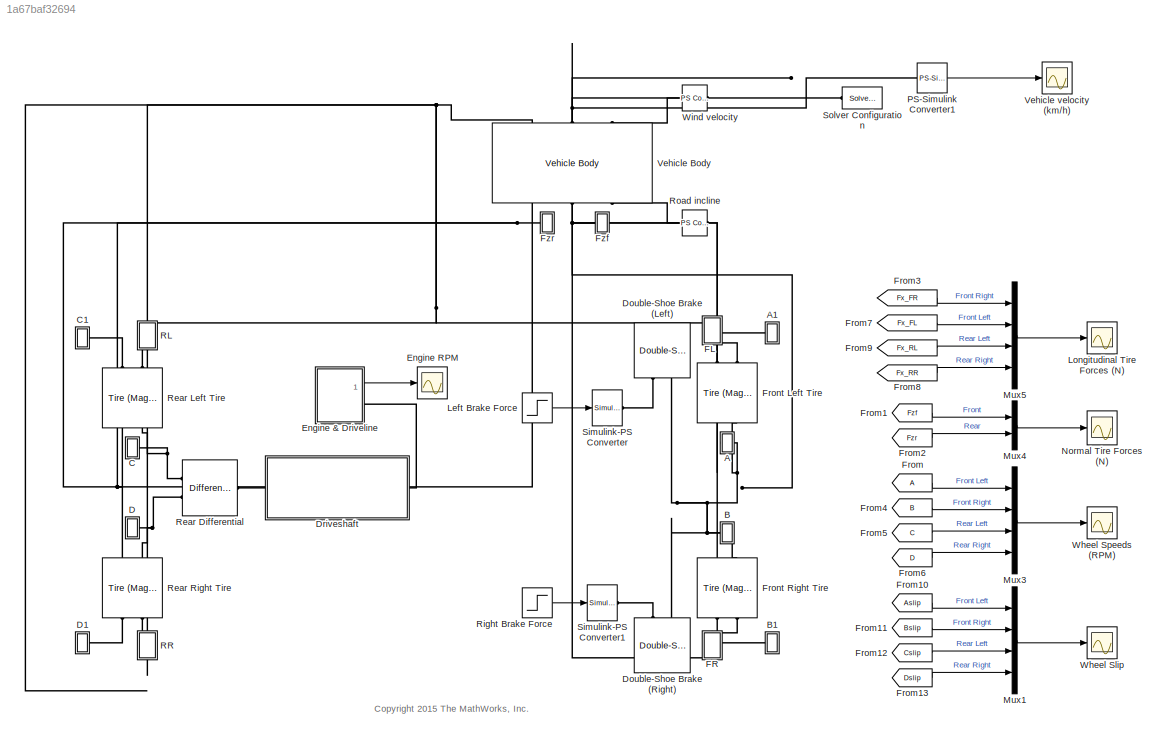
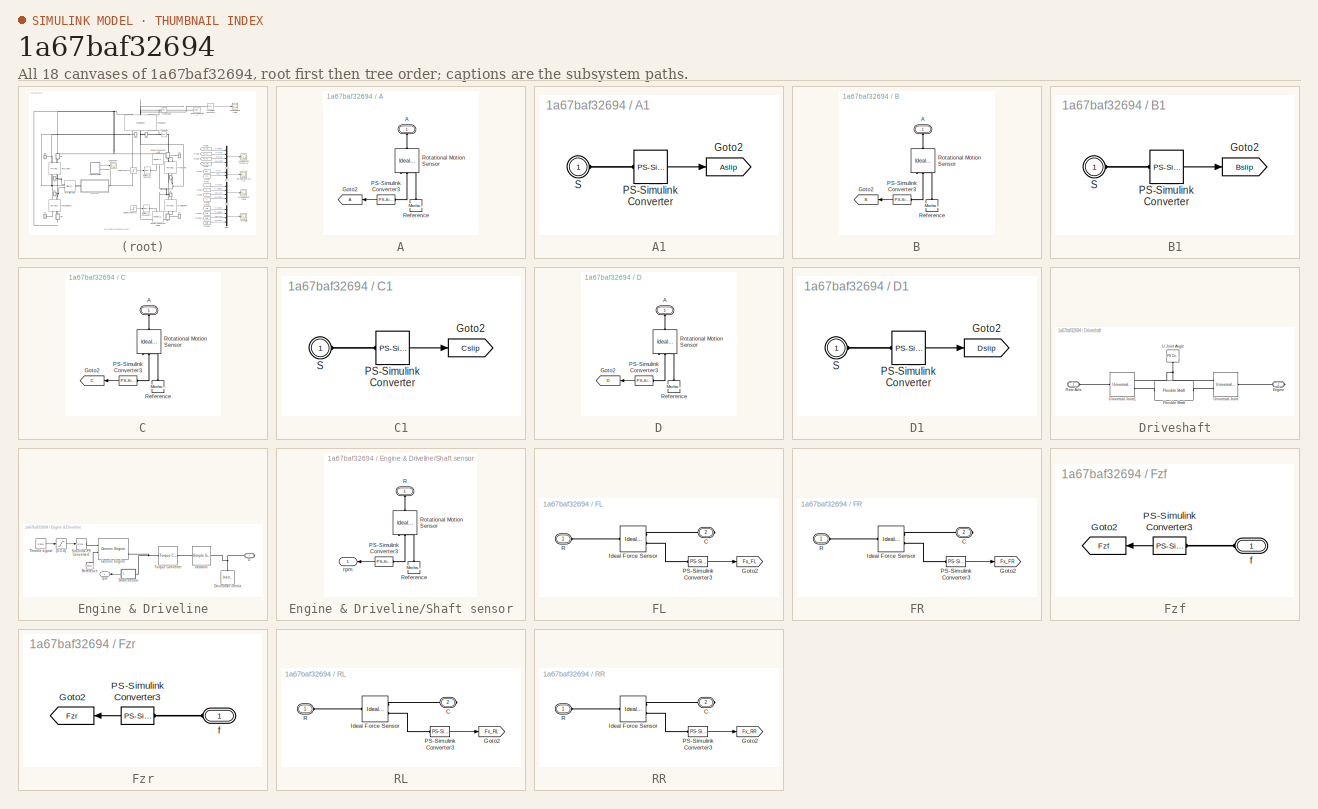
[diagram: thumbnail index - all 18 canvases of the model, root first then tree order]
MODEL slx_1a67baf32694
KIND model
CONFIG AbsTol = 1e-3
CONFIG FixedStep = auto
CONFIG MaxStep = auto
CONFIG MinStep = auto
CONFIG RelTol = 1e-3
CONFIG SampleTimeConstraint = Unconstrained
CONFIG Solver = ode23t
CONFIG SolverMode = Auto
CONFIG SolverName = ode23t
CONFIG StartTime = 0.0
CONFIG StopTime = 30
BLOCK [SubSystem] A
  Ports = [0, 0, 0, 0, 0, 1]
  RequestExecContextInheritance = off
BLOCK [PMIOPort] A/A
  Port = 1
  Side = Left
BLOCK [Goto] A/Goto2
  TagVisibility = global
BLOCK [Reference] A/PS-Simulink Converter3  REF=nesl_utility/PS-Simulink
Converter
  AffineConversion = off
  Frequencies = []
  LeftPortType = input
  PhysicalDomain = network_engine_domain
  Ports = [0, 1, 0, 0, 0, 1]
  PseudoPeriodic = off
  RightPortType = output
  SourceBlock = nesl_utility/PS-Simulink\nConverter
  SourceType = PS-Simulink\nConverter
  SubClassName = ps_output
  Unit = rpm
BLOCK [Reference] A/Reference  REF=fl_lib/Mechanical/Rotational Elements/Mechanical
Rotational Reference
  ClassName = reference
  ComponentPath = foundation.mechanical.rotational.reference
  ComponentVariantNames = reference
  ComponentVariants = foundation.mechanical.rotational.reference
  LogSimulationData = off
  Ports = [0, 0, 0, 0, 0, 1]
  SchemaVersion = 1
  SourceBlock = fl_lib/Mechanical/Rotational Elements/Mechanical\nRotational Reference
  SourceFile = foundation.mechanical.rotational.reference
  SourceType = Mechanical\nRotational Reference
BLOCK [Reference] A/Rotational Motion Sensor  REF=fl_lib/Mechanical/Mechanical Sensors/Ideal Rotational
Motion Sensor
  ClassName = angular_velocity
  ComponentPath = foundation.mechanical.sensors.angular_velocity
  ComponentVariantNames = angular_velocity
  ComponentVariants = foundation.mechanical.sensors.angular_velocity
  LogSimulationData = off
  Ports = [0, 0, 0, 0, 0, 1, 3]
  SchemaVersion = 1
  SourceBlock = fl_lib/Mechanical/Mechanical Sensors/Ideal Rotational\nMotion Sensor
  SourceFile = foundation.mechanical.sensors.angular_velocity
  SourceType = Ideal Rotational\nMotion Sensor
  offset = 0
  offset_unit = rad
BLOCK [SubSystem] A1
  Ports = [0, 0, 0, 0, 0, 1]
  RequestExecContextInheritance = off
BLOCK [Goto] A1/Goto2
  GotoTag = Aslip
  TagVisibility = global
BLOCK [Reference] A1/PS-Simulink Converter  REF=nesl_utility/PS-Simulink
Converter
  AffineConversion = off
  Frequencies = []
  LeftPortType = input
  PhysicalDomain = network_engine_domain
  Ports = [0, 1, 0, 0, 0, 1]
  PseudoPeriodic = off
  RightPortType = output
  SourceBlock = nesl_utility/PS-Simulink\nConverter
  SourceType = PS-Simulink\nConverter
  SubClassName = ps_output
  Unit = 1
BLOCK [PMIOPort] A1/S
  Port = 1
  Side = Left
BLOCK [SubSystem] B
  Ports = [0, 0, 0, 0, 0, 1]
  RequestExecContextInheritance = off
BLOCK [PMIOPort] B/A
  Port = 1
  Side = Left
BLOCK [Goto] B/Goto2
  GotoTag = B
  TagVisibility = global
BLOCK [Reference] B/PS-Simulink Converter3  REF=nesl_utility/PS-Simulink
Converter
  AffineConversion = off
  Frequencies = []
  LeftPortType = input
  PhysicalDomain = network_engine_domain
  Ports = [0, 1, 0, 0, 0, 1]
  PseudoPeriodic = off
  RightPortType = output
  SourceBlock = nesl_utility/PS-Simulink\nConverter
  SourceType = PS-Simulink\nConverter
  SubClassName = ps_output
  Unit = rpm
BLOCK [Reference] B/Reference  REF=fl_lib/Mechanical/Rotational Elements/Mechanical
Rotational Reference
  ClassName = reference
  ComponentPath = foundation.mechanical.rotational.reference
  ComponentVariantNames = reference
  ComponentVariants = foundation.mechanical.rotational.reference
  LogSimulationData = off
  Ports = [0, 0, 0, 0, 0, 1]
  SchemaVersion = 1
  SourceBlock = fl_lib/Mechanical/Rotational Elements/Mechanical\nRotational Reference
  SourceFile = foundation.mechanical.rotational.reference
  SourceType = Mechanical\nRotational Reference
BLOCK [Reference] B/Rotational Motion Sensor  REF=fl_lib/Mechanical/Mechanical Sensors/Ideal Rotational
Motion Sensor
  ClassName = angular_velocity
  ComponentPath = foundation.mechanical.sensors.angular_velocity
  ComponentVariantNames = angular_velocity
  ComponentVariants = foundation.mechanical.sensors.angular_velocity
  LogSimulationData = off
  Ports = [0, 0, 0, 0, 0, 1, 3]
  SchemaVersion = 1
  SourceBlock = fl_lib/Mechanical/Mechanical Sensors/Ideal Rotational\nMotion Sensor
  SourceFile = foundation.mechanical.sensors.angular_velocity
  SourceType = Ideal Rotational\nMotion Sensor
  offset = 0
  offset_unit = rad
BLOCK [SubSystem] B1
  Ports = [0, 0, 0, 0, 0, 1]
  RequestExecContextInheritance = off
BLOCK [Goto] B1/Goto2
  GotoTag = Bslip
  TagVisibility = global
BLOCK [Reference] B1/PS-Simulink Converter  REF=nesl_utility/PS-Simulink
Converter
  AffineConversion = off
  Frequencies = []
  LeftPortType = input
  PhysicalDomain = network_engine_domain
  Ports = [0, 1, 0, 0, 0, 1]
  PseudoPeriodic = off
  RightPortType = output
  SourceBlock = nesl_utility/PS-Simulink\nConverter
  SourceType = PS-Simulink\nConverter
  SubClassName = ps_output
  Unit = 1
BLOCK [PMIOPort] B1/S
  Port = 1
  Side = Left
BLOCK [SubSystem] C
  Ports = [0, 0, 0, 0, 0, 1]
  RequestExecContextInheritance = off
BLOCK [PMIOPort] C/A
  Port = 1
  Side = Left
BLOCK [Goto] C/Goto2
  GotoTag = C
  TagVisibility = global
BLOCK [Reference] C/PS-Simulink Converter3  REF=nesl_utility/PS-Simulink
Converter
  AffineConversion = off
  Frequencies = []
  LeftPortType = input
  PhysicalDomain = network_engine_domain
  Ports = [0, 1, 0, 0, 0, 1]
  PseudoPeriodic = off
  RightPortType = output
  SourceBlock = nesl_utility/PS-Simulink\nConverter
  SourceType = PS-Simulink\nConverter
  SubClassName = ps_output
  Unit = rpm
BLOCK [Reference] C/Reference  REF=fl_lib/Mechanical/Rotational Elements/Mechanical
Rotational Reference
  ClassName = reference
  ComponentPath = foundation.mechanical.rotational.reference
  ComponentVariantNames = reference
  ComponentVariants = foundation.mechanical.rotational.reference
  LogSimulationData = off
  Ports = [0, 0, 0, 0, 0, 1]
  SchemaVersion = 1
  SourceBlock = fl_lib/Mechanical/Rotational Elements/Mechanical\nRotational Reference
  SourceFile = foundation.mechanical.rotational.reference
  SourceType = Mechanical\nRotational Reference
BLOCK [Reference] C/Rotational Motion Sensor  REF=fl_lib/Mechanical/Mechanical Sensors/Ideal Rotational
Motion Sensor
  ClassName = angular_velocity
  ComponentPath = foundation.mechanical.sensors.angular_velocity
  ComponentVariantNames = angular_velocity
  ComponentVariants = foundation.mechanical.sensors.angular_velocity
  LogSimulationData = off
  Ports = [0, 0, 0, 0, 0, 1, 3]
  SchemaVersion = 1
  SourceBlock = fl_lib/Mechanical/Mechanical Sensors/Ideal Rotational\nMotion Sensor
  SourceFile = foundation.mechanical.sensors.angular_velocity
  SourceType = Ideal Rotational\nMotion Sensor
  offset = 0
  offset_unit = rad
BLOCK [SubSystem] C1
  Ports = [0, 0, 0, 0, 0, 1]
  RequestExecContextInheritance = off
BLOCK [Goto] C1/Goto2
  GotoTag = Cslip
  TagVisibility = global
BLOCK [Reference] C1/PS-Simulink Converter  REF=nesl_utility/PS-Simulink
Converter
  AffineConversion = off
  Frequencies = []
  LeftPortType = input
  PhysicalDomain = network_engine_domain
  Ports = [0, 1, 0, 0, 0, 1]
  PseudoPeriodic = off
  RightPortType = output
  SourceBlock = nesl_utility/PS-Simulink\nConverter
  SourceType = PS-Simulink\nConverter
  SubClassName = ps_output
  Unit = 1
BLOCK [PMIOPort] C1/S
  Port = 1
  Side = Left
BLOCK [SubSystem] D
  Ports = [0, 0, 0, 0, 0, 1]
  RequestExecContextInheritance = off
BLOCK [PMIOPort] D/A
  Port = 1
  Side = Left
BLOCK [Goto] D/Goto2
  GotoTag = D
  TagVisibility = global
BLOCK [Reference] D/PS-Simulink Converter3  REF=nesl_utility/PS-Simulink
Converter
  AffineConversion = off
  Frequencies = []
  LeftPortType = input
  PhysicalDomain = network_engine_domain
  Ports = [0, 1, 0, 0, 0, 1]
  PseudoPeriodic = off
  RightPortType = output
  SourceBlock = nesl_utility/PS-Simulink\nConverter
  SourceType = PS-Simulink\nConverter
  SubClassName = ps_output
  Unit = rpm
BLOCK [Reference] D/Reference  REF=fl_lib/Mechanical/Rotational Elements/Mechanical
Rotational Reference
  ClassName = reference
  ComponentPath = foundation.mechanical.rotational.reference
  ComponentVariantNames = reference
  ComponentVariants = foundation.mechanical.rotational.reference
  LogSimulationData = off
  Ports = [0, 0, 0, 0, 0, 1]
  SchemaVersion = 1
  SourceBlock = fl_lib/Mechanical/Rotational Elements/Mechanical\nRotational Reference
  SourceFile = foundation.mechanical.rotational.reference
  SourceType = Mechanical\nRotational Reference
BLOCK [Reference] D/Rotational Motion Sensor  REF=fl_lib/Mechanical/Mechanical Sensors/Ideal Rotational
Motion Sensor
  ClassName = angular_velocity
  ComponentPath = foundation.mechanical.sensors.angular_velocity
  ComponentVariantNames = angular_velocity
  ComponentVariants = foundation.mechanical.sensors.angular_velocity
  LogSimulationData = off
  Ports = [0, 0, 0, 0, 0, 1, 3]
  SchemaVersion = 1
  SourceBlock = fl_lib/Mechanical/Mechanical Sensors/Ideal Rotational\nMotion Sensor
  SourceFile = foundation.mechanical.sensors.angular_velocity
  SourceType = Ideal Rotational\nMotion Sensor
  offset = 0
  offset_unit = rad
BLOCK [SubSystem] D1
  Ports = [0, 0, 0, 0, 0, 1]
  RequestExecContextInheritance = off
BLOCK [Goto] D1/Goto2
  GotoTag = Dslip
  TagVisibility = global
BLOCK [Reference] D1/PS-Simulink Converter  REF=nesl_utility/PS-Simulink
Converter
  AffineConversion = off
  Frequencies = []
  LeftPortType = input
  PhysicalDomain = network_engine_domain
  Ports = [0, 1, 0, 0, 0, 1]
  PseudoPeriodic = off
  RightPortType = output
  SourceBlock = nesl_utility/PS-Simulink\nConverter
  SourceType = PS-Simulink\nConverter
  SubClassName = ps_output
  Unit = 1
BLOCK [PMIOPort] D1/S
  Port = 1
  Side = Left
BLOCK [Reference] Double-Shoe Brake (Left)  REF=sdl_lib/Brakes & Detents/Rotational/Double-Shoe Brake
  ClassName = double_shoe_brake
  ComponentPath = sdl.brakes.rotational.double_shoe_brake
  ComponentVariantNames = double_shoe_brake
  ComponentVariants = sdl.brakes.rotational.double_shoe_brake
  LogSimulationData = off
  Ports = [0, 0, 0, 0, 0, 2]
  SchemaVersion = 1
  SourceBlock = sdl_lib/Brakes & Detents/Rotational/Double-Shoe Brake
  SourceFile = sdl.brakes.rotational.double_shoe_brake
  SourceType = Double-Shoe Brake
  mu = 0.3
  mu_unit = 1
  mu_visc = .01
  mu_visc_unit = N*m/(rad/s)
  r_act = 150
  r_act_unit = mm
  r_drum = 200
  r_drum_unit = mm
  r_pin = 125
  r_pin_unit = mm
  theta_0 = 5
  theta_0_unit = deg
  theta_pin = 15
  theta_pin_unit = deg
  theta_shoe = 120
  theta_shoe_unit = deg
  w_thr = 0.01
  w_thr_unit = rad/s
BLOCK [Reference] Double-Shoe Brake (Right)  REF=sdl_lib/Brakes & Detents/Rotational/Double-Shoe Brake
  ClassName = double_shoe_brake
  ComponentPath = sdl.brakes.rotational.double_shoe_brake
  ComponentVariantNames = double_shoe_brake
  ComponentVariants = sdl.brakes.rotational.double_shoe_brake
  LogSimulationData = off
  Ports = [0, 0, 0, 0, 0, 2]
  SchemaVersion = 1
  SourceBlock = sdl_lib/Brakes & Detents/Rotational/Double-Shoe Brake
  SourceFile = sdl.brakes.rotational.double_shoe_brake
  SourceType = Double-Shoe Brake
  mu = 0.3
  mu_unit = 1
  mu_visc = .01
  mu_visc_unit = N*m/(rad/s)
  r_act = 150
  r_act_unit = mm
  r_drum = 200
  r_drum_unit = mm
  r_pin = 125
  r_pin_unit = mm
  theta_0 = 5
  theta_0_unit = deg
  theta_pin = 15
  theta_pin_unit = deg
  theta_shoe = 120
  theta_shoe_unit = deg
  w_thr = 0.01
  w_thr_unit = rad/s
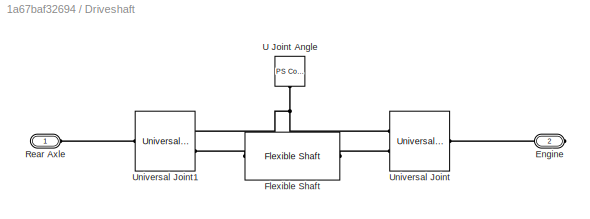
BLOCK [SubSystem] Driveshaft
  Ports = [0, 0, 0, 0, 0, 1, 1]
  RequestExecContextInheritance = off
BLOCK [PMIOPort] Driveshaft/Engine
  Port = 2
  Side = Right
BLOCK [Reference] Driveshaft/Flexible Shaft  REF=sdl_lib/Couplings & Drives/Flexible Shaft
  ClassName = flexible_shaft
  ComponentPath = sdl.couplings.flexible_shaft
  ComponentVariantNames = flexible_shaft
  ComponentVariants = sdl.couplings.flexible_shaft
  LogSimulationData = off
  Ports = [0, 0, 0, 0, 0, 1, 1]
  SchemaVersion = 1
  SourceBlock = sdl_lib/Couplings & Drives/Flexible Shaft
  SourceFile = sdl.couplings.flexible_shaft
  SourceType = Flexible Shaft
  damping_ratio = 0.2
  damping_ratio_unit = 1
  density = 7.8e+3
  density_unit = kg/m^3
  diameter_inner = 0.05
  diameter_inner_unit = m
  diameter_outer = 0.075
  diameter_outer_unit = m
  initial_deflection = 0
  initial_deflection_unit = rad
  initial_velocity = 0
  initial_velocity_unit = rpm
  length = 1
  length_unit = m
  mu_visc = [ 0 0 ]
  mu_visc_unit = N*m/(rad/s)
  n_segments = 1
  n_segments_unit = 1
  parameterization = 1
  parameterization_unit = 1
  shaft_construction = 1
  shaft_construction_unit = 1
  shaft_inertia = 0.02
  shaft_inertia_unit = kg*m^2
  shaft_stiffness = 1e6
  shaft_stiffness_unit = N*m/rad
  shear_modulus = 7.93e+10
  shear_modulus_unit = Pa
BLOCK [PMIOPort] Driveshaft/Rear Axle
  Port = 1
  Side = Left
BLOCK [Reference] Driveshaft/U Joint Angle  REF=fl_lib/Physical Signals/Sources/PS Constant
  ClassName = constant
  ComponentPath = foundation.physical_signal.sources.constant
  ComponentVariantNames = constant
  ComponentVariants = foundation.physical_signal.sources.constant
  LogSimulationData = off
  Ports = [0, 0, 0, 0, 0, 0, 1]
  SchemaVersion = 1
  SourceBlock = fl_lib/Physical Signals/Sources/PS Constant
  SourceFile = foundation.physical_signal.sources.constant
  SourceType = PS Constant
  constant = 15*pi/180
  constant_unit = 1
BLOCK [Reference] Driveshaft/Universal Joint  REF=sdl_lib/Couplings & Drives/Universal Joint
  Amax = pi / 4
  Amax_unit = rad
  ClassName = universal_joint
  ComponentPath = sdl.couplings.universal_joint
  ComponentVariantNames = universal_joint
  ComponentVariants = sdl.couplings.universal_joint
  LogSimulationData = off
  Ports = [0, 0, 0, 0, 0, 2, 1]
  SchemaVersion = 1
  SourceBlock = sdl_lib/Couplings & Drives/Universal Joint
  SourceFile = sdl.couplings.universal_joint
  SourceType = Universal Joint
  b = 1e3
  b_unit = N*m/(rad/s)
  k = 1e6
  k_unit = N*m/rad
  t0 = 0
  t0_unit = N*m
  thetaB0 = 0
  thetaB0_unit = rad
BLOCK [Reference] Driveshaft/Universal Joint1  REF=sdl_lib/Couplings & Drives/Universal Joint
  Amax = pi / 4
  Amax_unit = rad
  ClassName = universal_joint
  ComponentPath = sdl.couplings.universal_joint
  ComponentVariantNames = universal_joint
  ComponentVariants = sdl.couplings.universal_joint
  LogSimulationData = off
  Ports = [0, 0, 0, 0, 0, 2, 1]
  SchemaVersion = 1
  SourceBlock = sdl_lib/Couplings & Drives/Universal Joint
  SourceFile = sdl.couplings.universal_joint
  SourceType = Universal Joint
  b = 1e3
  b_unit = N*m/(rad/s)
  k = 1e6
  k_unit = N*m/rad
  t0 = 0
  t0_unit = N*m
  thetaB0 = 0
  thetaB0_unit = rad
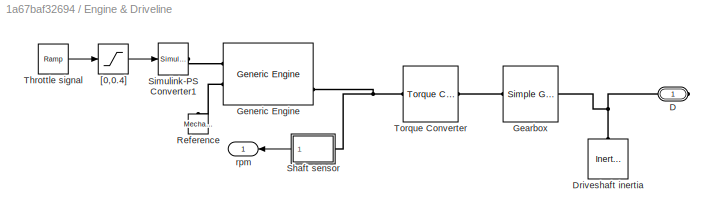
BLOCK [SubSystem] Engine & Driveline
  Ports = [0, 1, 0, 0, 0, 0, 1]
  RequestExecContextInheritance = off
BLOCK [PMIOPort] Engine & Driveline/D
  Port = 1
  Side = Right
BLOCK [Reference] Engine & Driveline/Driveshaft inertia  REF=fl_lib/Mechanical/Rotational Elements/Inertia
  ClassName = inertia
  ComponentPath = foundation.mechanical.rotational.inertia
  ComponentVariantNames = inertia
  ComponentVariants = foundation.mechanical.rotational.inertia
  LogSimulationData = off
  Ports = [0, 0, 0, 0, 0, 1]
  SchemaVersion = 1
  SourceBlock = fl_lib/Mechanical/Rotational Elements/Inertia
  SourceFile = foundation.mechanical.rotational.inertia
  SourceType = Inertia
  inertia = 12
  inertia_unit = kg*m^2
  t = 0
  t_priority = High
  t_specify = off
  t_unit = N*m
  w = 0
  w_priority = High
  w_specify = off
  w_unit = rad/s
BLOCK [Reference] Engine & Driveline/Gearbox  REF=sdl_lib/Gears/Simple Gear
  ClassName = simple_gear
  ComponentPath = sdl.gears.simple_gear
  ComponentVariantNames = No thermal port, Show thermal port
  ComponentVariants = sdl.gears.simple_gear, sdl.gears.simple_gear_th
  LogSimulationData = off
  Ports = [0, 0, 0, 0, 0, 1, 1]
  SchemaVersion = 1
  SourceBlock = sdl_lib/Gears/Simple Gear
  SourceFile = sdl.gears.simple_gear
  SourceType = Simple Gear
  T_init = 300
  T_init_unit = K
  T_noload = 0.1
  T_noload_unit = N*m
  T_nom = 5
  T_nom_unit = N*m
  efficiency = 0.8
  efficiency_TLU = [ 0.95 0.9 0.85 ]
  efficiency_TLU2 = [ 0.85 0.8 0.75; 0.95 0.9 0.85; 0.85 0.8 0.7 ]
  efficiency_TLU2_unit = 1
  efficiency_TLU_unit = 1
  efficiency_nom = 0.8
  efficiency_nom_unit = 1
  efficiency_unit = 1
  friction_model = 1
  friction_model_unit = 1
  load_TLU = [ 1 5 10 ]
  load_TLU_unit = N*m
  mu_visc = [ 0 0 ]
  mu_visc_unit = N*m/(rad/s)
  ratio = 2
  ratio_unit = 1
  rotation_direction = 1
  rotation_direction_unit = 1
  temperature_TLU = [ 280 300 320 ]
  temperature_TLU_unit = K
  thermal_mass = 50
  thermal_mass_unit = J/K
  w_thr = 0.01
  w_thr_unit = rad/s
BLOCK [Reference] Engine & Driveline/Generic Engine  REF=sdl_lib/Engines/Generic Engine
  ClassName = generic_engine
  ComponentPath = sdl.engines.generic_engine
  ComponentVariantNames = generic_engine
  ComponentVariants = sdl.engines.generic_engine
  LogSimulationData = off
  P_max = 150e3
  P_max_unit = W
  Ports = [0, 0, 0, 0, 0, 2, 3]
  SchemaVersion = 1
  SourceBlock = sdl_lib/Engines/Generic Engine
  SourceFile = sdl.engines.generic_engine
  SourceType = Generic Engine
  T0 = 0
  T0_unit = 1
  bmep_tab = [ 0 250 500 625 750 1000 1.15e+3 1.25e+3 ]
  bmep_tab_unit = kPa
  bsfc_tab = [ 410 380 300 280 270 290 320 380; 410 370 290 270 260 270 285 320; 415 380 290 275 265 270 270 300; 420 390 310 290 285 280 280 285; 430 410 340 320 310 300 310 320; 450 430 370 340 330 330 350 380 ]
  bsfc_tab_unit = g/hr/kW
  displaced_volume = 400
  displaced_volume_unit = cm^3
  engine_type = 1
  engine_type_unit = 1
  fc_interp_method = 1
  fc_interp_method_unit = 1
  fc_model = 1
  fc_model_unit = 1
  fc_per_rev = 25
  fc_per_rev_unit = mg/rev
  fc_tab = [ 0.5 0.9 1.4 1.6 1.9 2.7 3.4 4.4; 1 1.7 2.7 3.1 3.6 5 6 7.4; 1.4 2.7 4 4.8 5.6 7.5 8.5 10.5; 2 3.6 5.8 6.7 8 10.4 11.7 13.3; 2.5 4.8 7.9 9.4 10.8 14 16.2 18.6; 3.1 6 10.3 11.9 13.8 18.4 22 26.5 ]
  fc_tab_unit = g/s
  fc_trq_tab = [ 0 80 160 200 240 320 360 400 ]
  fc_trq_tab_unit = N*m
  fc_w_tab = [ 1000 2e+3 3e+3 4e+3 5e+3 6e+3 ]
  fc_w_tab_unit = rpm
  idle_speed = 0
  idle_speed_reference = 1000
  idle_speed_reference_unit = rpm
  idle_speed_unit = 1
  idle_w_thr = 1
  idle_w_thr_unit = rpm
  inertia = 0.2
  inertia_unit = kg*m^2
  initial_velocity = 800
  initial_velocity_unit = rpm
  interp_method = 1
  interp_method_unit = 1
  model_inertia = 1
  model_inertia_unit = 1
  model_parameterization = 1
  model_parameterization_unit = 1
  model_time_constant = 0
  model_time_constant_unit = 1
  pwr_tab = [ 2e+4 4e+4 7.8e+4 1.2e+5 1.45e+5 1.48e+5 1.25e+5 6e+4 ]
  pwr_tab_unit = W
  rev_per_cycle = 2
  rev_per_cycle_unit = 1
  tau_controller = 1
  tau_controller_unit = s
  time_constant = 0.2
  time_constant_unit = s
  trq_tab = [ 380 380 380 380 350 280 200 80 ]
  trq_tab_unit = N*m
  w_P_max = 4500
  w_P_max_unit = rpm
  w_max = 6000
  w_max_unit = rpm
  w_min = 500
  w_min_unit = rpm
  w_tab = [ 500 1000 2e+3 3e+3 4e+3 5e+3 6e+3 7e+3 ]
  w_tab_unit = rpm
  w_thr = 100
  w_thr_unit = rpm
BLOCK [Reference] Engine & Driveline/Reference  REF=fl_lib/Mechanical/Rotational Elements/Mechanical
Rotational Reference
  ClassName = reference
  ComponentPath = foundation.mechanical.rotational.reference
  ComponentVariantNames = reference
  ComponentVariants = foundation.mechanical.rotational.reference
  LogSimulationData = off
  Ports = [0, 0, 0, 0, 0, 1]
  SchemaVersion = 1
  SourceBlock = fl_lib/Mechanical/Rotational Elements/Mechanical\nRotational Reference
  SourceFile = foundation.mechanical.rotational.reference
  SourceType = Mechanical\nRotational Reference
BLOCK [SubSystem] Engine & Driveline/Shaft sensor
  Ports = [0, 1, 0, 0, 0, 1]
  RequestExecContextInheritance = off
BLOCK [Reference] Engine & Driveline/Shaft sensor/PS-Simulink Converter3  REF=nesl_utility/PS-Simulink
Converter
  AffineConversion = off
  Frequencies = []
  LeftPortType = input
  PhysicalDomain = network_engine_domain
  Ports = [0, 1, 0, 0, 0, 1]
  PseudoPeriodic = off
  RightPortType = output
  SourceBlock = nesl_utility/PS-Simulink\nConverter
  SourceType = PS-Simulink\nConverter
  SubClassName = ps_output
  Unit = rpm
BLOCK [PMIOPort] Engine & Driveline/Shaft sensor/R
  Port = 1
  Side = Left
BLOCK [Reference] Engine & Driveline/Shaft sensor/Reference  REF=fl_lib/Mechanical/Rotational Elements/Mechanical
Rotational Reference
  ClassName = reference
  ComponentPath = foundation.mechanical.rotational.reference
  ComponentVariantNames = reference
  ComponentVariants = foundation.mechanical.rotational.reference
  LogSimulationData = off
  Ports = [0, 0, 0, 0, 0, 1]
  SchemaVersion = 1
  SourceBlock = fl_lib/Mechanical/Rotational Elements/Mechanical\nRotational Reference
  SourceFile = foundation.mechanical.rotational.reference
  SourceType = Mechanical\nRotational Reference
BLOCK [Reference] Engine & Driveline/Shaft sensor/Rotational Motion Sensor  REF=fl_lib/Mechanical/Mechanical Sensors/Ideal Rotational
Motion Sensor
  ClassName = angular_velocity
  ComponentPath = foundation.mechanical.sensors.angular_velocity
  ComponentVariantNames = angular_velocity
  ComponentVariants = foundation.mechanical.sensors.angular_velocity
  LogSimulationData = off
  Ports = [0, 0, 0, 0, 0, 1, 3]
  SchemaVersion = 1
  SourceBlock = fl_lib/Mechanical/Mechanical Sensors/Ideal Rotational\nMotion Sensor
  SourceFile = foundation.mechanical.sensors.angular_velocity
  SourceType = Ideal Rotational\nMotion Sensor
  offset = 0
  offset_unit = rad
BLOCK [Outport] Engine & Driveline/Shaft sensor/rpm
  IconDisplay = Port number
BLOCK [Reference] Engine & Driveline/Simulink-PS Converter1  REF=nesl_utility/Simulink-PS
Converter
  AffineConversion = off
  Frequencies = []
  InputFilterTimeConstant = .001
  InputFiltering = off
  LeftPortType = input
  NoiseDistribution = none
  NoiseParameters = []
  PhysicalDomain = network_engine_domain
  Ports = [1, 0, 0, 0, 0, 0, 1]
  PseudoPeriodic = off
  RightPortType = output
  SimscapeFilterOrder = 1
  SourceBlock = nesl_utility/Simulink-PS\nConverter
  SourceType = Simulink-PS\nConverter
  SubClassName = ps_input
  UdotUserProvided = 0
  Unit = 1
BLOCK [Reference] Engine & Driveline/Throttle signal  REF=simulink/Sources/Ramp
  Ports = [0, 1]
  SourceBlock = simulink/Sources/Ramp
  SourceType = Ramp
  VectorParams1D = on
  X0 = 0.02
  slope = 0.9/2
  start = 0
BLOCK [Reference] Engine & Driveline/Torque Converter  REF=sdl_lib/Couplings & Drives/Torque Converter
  ClassName = torque_converter
  ComponentPath = sdl.couplings.torque_converter
  ComponentVariantNames = torque_converter
  ComponentVariants = sdl.couplings.torque_converter
  LogSimulationData = off
  Ports = [0, 0, 0, 0, 0, 1, 1]
  SchemaVersion = 1
  SourceBlock = sdl_lib/Couplings & Drives/Torque Converter
  SourceFile = sdl.couplings.torque_converter
  SourceType = Torque Converter
  cf_vector = [12.2938 12.8588 13.1452 13.6285 14.6163 16.2675 19.3503 22.1046 29.9986 50.00]
  cf_vector_parameterization = 1
  cf_vector_parameterization_unit = 1
  cf_vector_reference_speed = 1
  cf_vector_reference_speed_unit = 1
  cf_vector_sq = 1e-3*[ 6.616 6.048 5.787 5.384 4.681 3.779 2.671 2.047 1.111 0.400]
  cf_vector_sq_unit = N*m/(rad/s)^2
  cf_vector_unit = (rad/s)/(N*m)^0.5
  extrap_method = 1
  extrap_method_unit = 1
  initial_trq_ratio = 0
  initial_trq_ratio_unit = 1
  interp_method = 1
  interp_method_unit = 1
  model_lag = 0
  model_lag_unit = 1
  n_vector = [0 0.50 0.60 0.70 0.80 0.87 0.92 0.94 0.96 0.97]
  n_vector_unit = 1
  tau = 0.02
  tau_unit = s
  trq_vector = [2.2320 1.5462 1.4058 1.2746 1.1528 1.0732 1.0192 0.9983 0.9983 0.9983]
  trq_vector_unit = 1
BLOCK [Saturate] Engine & Driveline/[0,0.4]
  InputPortMap = u0
  LowerLimit = 0
  Ports = [1, 1]
  UpperLimit = 0.4
BLOCK [Outport] Engine & Driveline/rpm
  IconDisplay = Port number
BLOCK [Scope] Engine RPM
  DataFormat = StructureWithTime
  Floating = off
  LimitDataPoints = off
  NumInputPorts = 1
  Ports = [1]
  SampleTime = 0
  SaveName = ScopeData3
  TimeRange = 30
  YMax = 1800
  YMin = 600
BLOCK [SubSystem] FL
  Ports = [0, 0, 0, 0, 0, 1, 1]
  RequestExecContextInheritance = off
BLOCK [PMIOPort] FL/C
  Port = 2
  Side = Right
BLOCK [Goto] FL/Goto2
  GotoTag = Fx_FL
  TagVisibility = global
BLOCK [Reference] FL/Ideal Force Sensor  REF=fl_lib/Mechanical/Mechanical Sensors/Ideal Force Sensor
  ClassName = force
  ComponentPath = foundation.mechanical.sensors.force
  ComponentVariantNames = force
  ComponentVariants = foundation.mechanical.sensors.force
  LogSimulationData = off
  Ports = [0, 0, 0, 0, 0, 1, 2]
  SchemaVersion = 1
  SourceBlock = fl_lib/Mechanical/Mechanical Sensors/Ideal Force Sensor
  SourceFile = foundation.mechanical.sensors.force
  SourceType = Ideal Force Sensor
BLOCK [Reference] FL/PS-Simulink Converter3  REF=nesl_utility/PS-Simulink
Converter
  AffineConversion = off
  Frequencies = []
  LeftPortType = input
  PhysicalDomain = network_engine_domain
  Ports = [0, 1, 0, 0, 0, 1]
  PseudoPeriodic = off
  RightPortType = output
  SourceBlock = nesl_utility/PS-Simulink\nConverter
  SourceType = PS-Simulink\nConverter
  SubClassName = ps_output
  Unit = N
BLOCK [PMIOPort] FL/R
  Port = 1
  Side = Left
BLOCK [SubSystem] FR
  Ports = [0, 0, 0, 0, 0, 1, 1]
  RequestExecContextInheritance = off
BLOCK [PMIOPort] FR/C
  Port = 2
  Side = Right
BLOCK [Goto] FR/Goto2
  GotoTag = Fx_FR
  TagVisibility = global
BLOCK [Reference] FR/Ideal Force Sensor  REF=fl_lib/Mechanical/Mechanical Sensors/Ideal Force Sensor
  ClassName = force
  ComponentPath = foundation.mechanical.sensors.force
  ComponentVariantNames = force
  ComponentVariants = foundation.mechanical.sensors.force
  LogSimulationData = off
  Ports = [0, 0, 0, 0, 0, 1, 2]
  SchemaVersion = 1
  SourceBlock = fl_lib/Mechanical/Mechanical Sensors/Ideal Force Sensor
  SourceFile = foundation.mechanical.sensors.force
  SourceType = Ideal Force Sensor
BLOCK [Reference] FR/PS-Simulink Converter3  REF=nesl_utility/PS-Simulink
Converter
  AffineConversion = off
  Frequencies = []
  LeftPortType = input
  PhysicalDomain = network_engine_domain
  Ports = [0, 1, 0, 0, 0, 1]
  PseudoPeriodic = off
  RightPortType = output
  SourceBlock = nesl_utility/PS-Simulink\nConverter
  SourceType = PS-Simulink\nConverter
  SubClassName = ps_output
  Unit = N
BLOCK [PMIOPort] FR/R
  Port = 1
  Side = Left
BLOCK [From] From
  CloseFcn = tagdialog Close
  TagVisibility = global
BLOCK [From] From1
  CloseFcn = tagdialog Close
  GotoTag = Fzf
  TagVisibility = global
BLOCK [From] From10
  CloseFcn = tagdialog Close
  GotoTag = Aslip
  TagVisibility = global
BLOCK [From] From11
  CloseFcn = tagdialog Close
  GotoTag = Bslip
  TagVisibility = global
BLOCK [From] From12
  CloseFcn = tagdialog Close
  GotoTag = Cslip
  TagVisibility = global
BLOCK [From] From13
  CloseFcn = tagdialog Close
  GotoTag = Dslip
  TagVisibility = global
BLOCK [From] From2
  CloseFcn = tagdialog Close
  GotoTag = Fzr
  TagVisibility = global
BLOCK [From] From3
  CloseFcn = tagdialog Close
  GotoTag = Fx_FR
  TagVisibility = global
BLOCK [From] From4
  CloseFcn = tagdialog Close
  GotoTag = B
  TagVisibility = global
BLOCK [From] From5
  CloseFcn = tagdialog Close
  GotoTag = C
  TagVisibility = global
BLOCK [From] From6
  CloseFcn = tagdialog Close
  GotoTag = D
  TagVisibility = global
BLOCK [From] From7
  CloseFcn = tagdialog Close
  GotoTag = Fx_FL
  TagVisibility = global
BLOCK [From] From8
  CloseFcn = tagdialog Close
  GotoTag = Fx_RR
  TagVisibility = global
BLOCK [From] From9
  CloseFcn = tagdialog Close
  GotoTag = Fx_RL
  TagVisibility = global
BLOCK [Reference] Front Left Tire  REF=sdl_lib/Tires & Vehicles/Tire (Magic Formula)
  B_m = 10
  B_m_unit = 1
  C_m = 1.9
  C_m_unit = 1
  ClassName = tire_magic
  ComponentPath = sdl.tires.tire_magic
  ComponentVariantNames = tire_magic
  ComponentVariants = sdl.tires.tire_magic
  D_m = 1
  D_m_unit = 1
  E_m = 0.97
  E_m_unit = 1
  F_x1 = 3500
  F_x1_unit = N
  F_z1 = 3000
  F_z1_unit = N
  LogSimulationData = off
  Ports = [0, 0, 0, 0, 0, 2, 2]
  SchemaVersion = 1
  SourceBlock = sdl_lib/Tires & Vehicles/Tire (Magic Formula)
  SourceFile = sdl.tires.tire_magic
  SourceType = Tire (Magic Formula)
  alpha = -0.003
  alpha_unit = 1
  beta = 0.97
  beta_unit = 1
  coeff = 0.015
  coeff_a = 84e-4
  coeff_a_unit = 1
  coeff_b = 6.2e-4
  coeff_b_unit = s/m
  coeff_c = 1.6e-4
  coeff_c_unit = s^2/m^2
  coeff_unit = 1
  damping = 1000
  damping_unit = N/(m/s)
  fz0 = 4e+3
  fz0_unit = N
  inertia = 4.129
  inertia_unit = kg*m^2
  initial_velocity = 0
  initial_velocity_unit = rpm
  kappa1 = 10
  kappa1_unit = 1
  model_compliance = 1
  model_compliance_unit = 1
  model_inertia = 1
  model_inertia_unit = 1
  model_resistance = 1
  model_resistance_unit = 1
  p_Cx = 1.685
  p_Cx_unit = 1
  p_Dx = [ 1.21 -0.037 ]
  p_Dx_unit = 1
  p_Ex = [ 0.344 0.095 -0.02 0 ]
  p_Ex_unit = 1
  p_Hx = [ -0.002 0.002 ]
  p_Hx_unit = 1
  p_Kx = [ 21.51 -0.163 0.245 ]
  p_Kx_unit = 1
  p_Vx = [ 0 0 ]
  p_Vx_unit = 1
  p_tire = 250e3
  p_tire_unit = Pa
  parameterization = 1
  parameterization_unit = 1
  r_e = 16*2.54/100
  r_e_unit = m
  resistance_model = 1
  resistance_model_unit = 1
  stiffness = 200000
  stiffness_unit = N/m
  v_thr = 1e-3
  v_thr_unit = m/s
  v_tr_thr = 0.1
  v_tr_thr_unit = m/s
BLOCK [Reference] Front Right Tire  REF=sdl_lib/Tires & Vehicles/Tire (Magic Formula)
  B_m = 10
  B_m_unit = 1
  C_m = 1.9
  C_m_unit = 1
  ClassName = tire_magic
  ComponentPath = sdl.tires.tire_magic
  ComponentVariantNames = tire_magic
  ComponentVariants = sdl.tires.tire_magic
  D_m = 1
  D_m_unit = 1
  E_m = 0.97
  E_m_unit = 1
  F_x1 = 3500
  F_x1_unit = N
  F_z1 = 3000
  F_z1_unit = N
  LogSimulationData = off
  Ports = [0, 0, 0, 0, 0, 2, 2]
  SchemaVersion = 1
  SourceBlock = sdl_lib/Tires & Vehicles/Tire (Magic Formula)
  SourceFile = sdl.tires.tire_magic
  SourceType = Tire (Magic Formula)
  alpha = -0.003
  alpha_unit = 1
  beta = 0.97
  beta_unit = 1
  coeff = 0.015
  coeff_a = 84e-4
  coeff_a_unit = 1
  coeff_b = 6.2e-4
  coeff_b_unit = s/m
  coeff_c = 1.6e-4
  coeff_c_unit = s^2/m^2
  coeff_unit = 1
  damping = 1000
  damping_unit = N/(m/s)
  fz0 = 4e+3
  fz0_unit = N
  inertia = 4.129
  inertia_unit = kg*m^2
  initial_velocity = 0
  initial_velocity_unit = rpm
  kappa1 = 10
  kappa1_unit = 1
  model_compliance = 1
  model_compliance_unit = 1
  model_inertia = 1
  model_inertia_unit = 1
  model_resistance = 1
  model_resistance_unit = 1
  p_Cx = 1.685
  p_Cx_unit = 1
  p_Dx = [ 1.21 -0.037 ]
  p_Dx_unit = 1
  p_Ex = [ 0.344 0.095 -0.02 0 ]
  p_Ex_unit = 1
  p_Hx = [ -0.002 0.002 ]
  p_Hx_unit = 1
  p_Kx = [ 21.51 -0.163 0.245 ]
  p_Kx_unit = 1
  p_Vx = [ 0 0 ]
  p_Vx_unit = 1
  p_tire = 250e3
  p_tire_unit = Pa
  parameterization = 1
  parameterization_unit = 1
  r_e = 16*2.54/100
  r_e_unit = m
  resistance_model = 1
  resistance_model_unit = 1
  stiffness = 200000
  stiffness_unit = N/m
  v_thr = 1e-3
  v_thr_unit = m/s
  v_tr_thr = 0.1
  v_tr_thr_unit = m/s
BLOCK [SubSystem] Fzf
  Ports = [0, 0, 0, 0, 0, 1]
  RequestExecContextInheritance = off
BLOCK [Goto] Fzf/Goto2
  GotoTag = Fzf
  TagVisibility = global
BLOCK [Reference] Fzf/PS-Simulink Converter3  REF=nesl_utility/PS-Simulink
Converter
  AffineConversion = off
  Frequencies = []
  LeftPortType = input
  PhysicalDomain = network_engine_domain
  Ports = [0, 1, 0, 0, 0, 1]
  PseudoPeriodic = off
  RightPortType = output
  SourceBlock = nesl_utility/PS-Simulink\nConverter
  SourceType = PS-Simulink\nConverter
  SubClassName = ps_output
  Unit = N
BLOCK [PMIOPort] Fzf/f
  Port = 1
  Side = Left
BLOCK [SubSystem] Fzr
  Ports = [0, 0, 0, 0, 0, 1]
  RequestExecContextInheritance = off
BLOCK [Goto] Fzr/Goto2
  GotoTag = Fzr
  TagVisibility = global
BLOCK [Reference] Fzr/PS-Simulink Converter3  REF=nesl_utility/PS-Simulink
Converter
  AffineConversion = off
  Frequencies = []
  LeftPortType = input
  PhysicalDomain = network_engine_domain
  Ports = [0, 1, 0, 0, 0, 1]
  PseudoPeriodic = off
  RightPortType = output
  SourceBlock = nesl_utility/PS-Simulink\nConverter
  SourceType = PS-Simulink\nConverter
  SubClassName = ps_output
  Unit = N
BLOCK [PMIOPort] Fzr/f
  Port = 1
  Side = Left
BLOCK [Step] Left Brake Force
  After = 1000
  AttributesFormatString = Brake on @ %<Time> s
  SampleTime = 0
  Time = 10
BLOCK [Scope] Longitudinal Tire Forces (N)
  DataFormat = StructureWithTime
  Floating = off
  LegendLocations = 0.74469     0.81239     0.20036     0.12089
  LimitDataPoints = off
  NumInputPorts = 1
  Ports = [1]
  SampleTime = 0
  SaveName = ScopeData4
  ShowLegends = on
  TimeRange = 30
  YMax = 3500
  YMin = -1500
  ZoomMode = xonly
BLOCK [Mux] Mux1
  DisplayOption = bar
  Ports = [4, 1]
BLOCK [Mux] Mux3
  DisplayOption = bar
  Ports = [4, 1]
BLOCK [Mux] Mux4
  DisplayOption = bar
  Inputs = 2
  Ports = [2, 1]
BLOCK [Mux] Mux5
  DisplayOption = bar
  Ports = [4, 1]
BLOCK [Scope] Normal Tire Forces (N)
  DataFormat = StructureWithTime
  Floating = off
  LimitDataPoints = off
  NumInputPorts = 1
  Ports = [1]
  SampleTime = 0
  SaveName = ScopeData2
  ShowLegends = on
  TimeRange = 30
  YMax = 3900
  YMin = 3200
BLOCK [Reference] PS-Simulink Converter1  REF=nesl_utility/PS-Simulink
Converter
  AffineConversion = off
  Frequencies = []
  LeftPortType = input
  PhysicalDomain = network_engine_domain
  Ports = [0, 1, 0, 0, 0, 1]
  PseudoPeriodic = off
  RightPortType = output
  SourceBlock = nesl_utility/PS-Simulink\nConverter
  SourceType = PS-Simulink\nConverter
  SubClassName = ps_output
  Unit = km/hr
BLOCK [SubSystem] RL
  Ports = [0, 0, 0, 0, 0, 1, 1]
  RequestExecContextInheritance = off
BLOCK [PMIOPort] RL/C
  Port = 2
  Side = Right
BLOCK [Goto] RL/Goto2
  GotoTag = Fx_RL
  TagVisibility = global
BLOCK [Reference] RL/Ideal Force Sensor  REF=fl_lib/Mechanical/Mechanical Sensors/Ideal Force Sensor
  ClassName = force
  ComponentPath = foundation.mechanical.sensors.force
  ComponentVariantNames = force
  ComponentVariants = foundation.mechanical.sensors.force
  LogSimulationData = off
  Ports = [0, 0, 0, 0, 0, 1, 2]
  SchemaVersion = 1
  SourceBlock = fl_lib/Mechanical/Mechanical Sensors/Ideal Force Sensor
  SourceFile = foundation.mechanical.sensors.force
  SourceType = Ideal Force Sensor
BLOCK [Reference] RL/PS-Simulink Converter3  REF=nesl_utility/PS-Simulink
Converter
  AffineConversion = off
  Frequencies = []
  LeftPortType = input
  PhysicalDomain = network_engine_domain
  Ports = [0, 1, 0, 0, 0, 1]
  PseudoPeriodic = off
  RightPortType = output
  SourceBlock = nesl_utility/PS-Simulink\nConverter
  SourceType = PS-Simulink\nConverter
  SubClassName = ps_output
  Unit = N
BLOCK [PMIOPort] RL/R
  Port = 1
  Side = Left
BLOCK [SubSystem] RR
  Ports = [0, 0, 0, 0, 0, 1, 1]
  RequestExecContextInheritance = off
BLOCK [PMIOPort] RR/C
  Port = 2
  Side = Right
BLOCK [Goto] RR/Goto2
  GotoTag = Fx_RR
  TagVisibility = global
BLOCK [Reference] RR/Ideal Force Sensor  REF=fl_lib/Mechanical/Mechanical Sensors/Ideal Force Sensor
  ClassName = force
  ComponentPath = foundation.mechanical.sensors.force
  ComponentVariantNames = force
  ComponentVariants = foundation.mechanical.sensors.force
  LogSimulationData = off
  Ports = [0, 0, 0, 0, 0, 1, 2]
  SchemaVersion = 1
  SourceBlock = fl_lib/Mechanical/Mechanical Sensors/Ideal Force Sensor
  SourceFile = foundation.mechanical.sensors.force
  SourceType = Ideal Force Sensor
BLOCK [Reference] RR/PS-Simulink Converter3  REF=nesl_utility/PS-Simulink
Converter
  AffineConversion = off
  Frequencies = []
  LeftPortType = input
  PhysicalDomain = network_engine_domain
  Ports = [0, 1, 0, 0, 0, 1]
  PseudoPeriodic = off
  RightPortType = output
  SourceBlock = nesl_utility/PS-Simulink\nConverter
  SourceType = PS-Simulink\nConverter
  SubClassName = ps_output
  Unit = N
BLOCK [PMIOPort] RR/R
  Port = 1
  Side = Left
BLOCK [Reference] Rear Differential  REF=sdl_lib/Gears/Differential
  ClassName = differential
  ComponentPath = sdl.gears.differential
  ComponentVariantNames = No thermal port, Show thermal port
  ComponentVariants = sdl.gears.differential, sdl.gears.differential_th
  LogSimulationData = off
  Ports = [0, 0, 0, 0, 0, 1, 2]
  SchemaVersion = 1
  SourceBlock = sdl_lib/Gears/Differential
  SourceFile = sdl.gears.differential
  SourceType = Differential
  T_init = 300
  T_init_unit = K
  cd_ratio = 4
  cd_ratio_unit = 1
  driveshaft_location = 2
  driveshaft_location_unit = 1
  efficiency = [ 0.85 0.92 ]
  efficiency_cd_TLU = [ 0.95 0.9 0.85 ]
  efficiency_cd_TLU_unit = 1
  efficiency_ss_TLU = [ 0.95 0.9 0.85 ]
  efficiency_ss_TLU_unit = 1
  efficiency_unit = 1
  friction_model = 1
  friction_model_unit = 1
  mu_visc = [ 0 0 ]
  mu_visc_unit = N*m/(rad/s)
  temperature_TLU = [ 280 300 320 ]
  temperature_TLU_unit = K
  thermal_mass = 50
  thermal_mass_unit = J/K
  w_thr = [ 0.01 0.01 ]
  w_thr_unit = rad/s
BLOCK [Reference] Rear Left Tire  REF=sdl_lib/Tires & Vehicles/Tire (Magic Formula)
  B_m = 10
  B_m_unit = 1
  C_m = 1.9
  C_m_unit = 1
  ClassName = tire_magic
  ComponentPath = sdl.tires.tire_magic
  ComponentVariantNames = tire_magic
  ComponentVariants = sdl.tires.tire_magic
  D_m = 1
  D_m_unit = 1
  E_m = 0.97
  E_m_unit = 1
  F_x1 = 3500
  F_x1_unit = N
  F_z1 = 3000
  F_z1_unit = N
  LogSimulationData = off
  Ports = [0, 0, 0, 0, 0, 2, 2]
  SchemaVersion = 1
  SourceBlock = sdl_lib/Tires & Vehicles/Tire (Magic Formula)
  SourceFile = sdl.tires.tire_magic
  SourceType = Tire (Magic Formula)
  alpha = -0.003
  alpha_unit = 1
  beta = 0.97
  beta_unit = 1
  coeff = 0.015
  coeff_a = 84e-4
  coeff_a_unit = 1
  coeff_b = 6.2e-4
  coeff_b_unit = s/m
  coeff_c = 1.6e-4
  coeff_c_unit = s^2/m^2
  coeff_unit = 1
  damping = 1000
  damping_unit = N/(m/s)
  fz0 = 4e+3
  fz0_unit = N
  inertia = 4.129
  inertia_unit = kg*m^2
  initial_velocity = 0
  initial_velocity_unit = rpm
  kappa1 = 10
  kappa1_unit = 1
  model_compliance = 1
  model_compliance_unit = 1
  model_inertia = 1
  model_inertia_unit = 1
  model_resistance = 1
  model_resistance_unit = 1
  p_Cx = 1.685
  p_Cx_unit = 1
  p_Dx = [ 1.21 -0.037 ]
  p_Dx_unit = 1
  p_Ex = [ 0.344 0.095 -0.02 0 ]
  p_Ex_unit = 1
  p_Hx = [ -0.002 0.002 ]
  p_Hx_unit = 1
  p_Kx = [ 21.51 -0.163 0.245 ]
  p_Kx_unit = 1
  p_Vx = [ 0 0 ]
  p_Vx_unit = 1
  p_tire = 250e3
  p_tire_unit = Pa
  parameterization = 1
  parameterization_unit = 1
  r_e = 16*2.54/100
  r_e_unit = m
  resistance_model = 1
  resistance_model_unit = 1
  stiffness = 200000
  stiffness_unit = N/m
  v_thr = 1e-3
  v_thr_unit = m/s
  v_tr_thr = 0.1
  v_tr_thr_unit = m/s
BLOCK [Reference] Rear Right Tire  REF=sdl_lib/Tires & Vehicles/Tire (Magic Formula)
  B_m = 10
  B_m_unit = 1
  C_m = 1.9
  C_m_unit = 1
  ClassName = tire_magic
  ComponentPath = sdl.tires.tire_magic
  ComponentVariantNames = tire_magic
  ComponentVariants = sdl.tires.tire_magic
  D_m = 1
  D_m_unit = 1
  E_m = 0.97
  E_m_unit = 1
  F_x1 = 3500
  F_x1_unit = N
  F_z1 = 3000
  F_z1_unit = N
  LogSimulationData = off
  Ports = [0, 0, 0, 0, 0, 2, 2]
  SchemaVersion = 1
  SourceBlock = sdl_lib/Tires & Vehicles/Tire (Magic Formula)
  SourceFile = sdl.tires.tire_magic
  SourceType = Tire (Magic Formula)
  alpha = -0.003
  alpha_unit = 1
  beta = 0.97
  beta_unit = 1
  coeff = 0.015
  coeff_a = 84e-4
  coeff_a_unit = 1
  coeff_b = 6.2e-4
  coeff_b_unit = s/m
  coeff_c = 1.6e-4
  coeff_c_unit = s^2/m^2
  coeff_unit = 1
  damping = 1000
  damping_unit = N/(m/s)
  fz0 = 4e+3
  fz0_unit = N
  inertia = 4.129
  inertia_unit = kg*m^2
  initial_velocity = 0
  initial_velocity_unit = rpm
  kappa1 = 10
  kappa1_unit = 1
  model_compliance = 1
  model_compliance_unit = 1
  model_inertia = 1
  model_inertia_unit = 1
  model_resistance = 1
  model_resistance_unit = 1
  p_Cx = 1.685
  p_Cx_unit = 1
  p_Dx = [ 1.21 -0.037 ]
  p_Dx_unit = 1
  p_Ex = [ 0.344 0.095 -0.02 0 ]
  p_Ex_unit = 1
  p_Hx = [ -0.002 0.002 ]
  p_Hx_unit = 1
  p_Kx = [ 21.51 -0.163 0.245 ]
  p_Kx_unit = 1
  p_Vx = [ 0 0 ]
  p_Vx_unit = 1
  p_tire = 250e3
  p_tire_unit = Pa
  parameterization = 1
  parameterization_unit = 1
  r_e = 16*2.54/100
  r_e_unit = m
  resistance_model = 1
  resistance_model_unit = 1
  stiffness = 200000
  stiffness_unit = N/m
  v_thr = 1e-3
  v_thr_unit = m/s
  v_tr_thr = 0.1
  v_tr_thr_unit = m/s
BLOCK [Step] Right Brake Force
  After = 1000
  AttributesFormatString = Brake on @ %<Time> s
  SampleTime = 0
  Time = 15
BLOCK [Reference] Road incline  REF=fl_lib/Physical Signals/Sources/PS Constant
  ClassName = constant
  ComponentPath = foundation.physical_signal.sources.constant
  ComponentVariantNames = constant
  ComponentVariants = foundation.physical_signal.sources.constant
  LogSimulationData = off
  Ports = [0, 0, 0, 0, 0, 0, 1]
  SchemaVersion = 1
  SourceBlock = fl_lib/Physical Signals/Sources/PS Constant
  SourceFile = foundation.physical_signal.sources.constant
  SourceType = PS Constant
  constant = pi*15/180
  constant_unit = 1
BLOCK [Reference] Simulink-PS Converter  REF=nesl_utility/Simulink-PS
Converter
  AffineConversion = off
  Frequencies = []
  InputFilterTimeConstant = 0.001
  InputFiltering = off
  LeftPortType = input
  NoiseDistribution = none
  NoiseParameters = []
  PhysicalDomain = network_engine_domain
  Ports = [1, 0, 0, 0, 0, 0, 1]
  PseudoPeriodic = off
  RightPortType = output
  SimscapeFilterOrder = 1
  SourceBlock = nesl_utility/Simulink-PS\nConverter
  SourceType = Simulink-PS\nConverter
  SubClassName = ps_input
  UdotUserProvided = 1
  Unit = 1
BLOCK [Reference] Simulink-PS Converter1  REF=nesl_utility/Simulink-PS
Converter
  AffineConversion = off
  Frequencies = []
  InputFilterTimeConstant = 0.001
  InputFiltering = off
  LeftPortType = input
  NoiseDistribution = none
  NoiseParameters = []
  PhysicalDomain = network_engine_domain
  Ports = [1, 0, 0, 0, 0, 0, 1]
  PseudoPeriodic = off
  RightPortType = output
  SimscapeFilterOrder = 1
  SourceBlock = nesl_utility/Simulink-PS\nConverter
  SourceType = Simulink-PS\nConverter
  SubClassName = ps_input
  UdotUserProvided = 1
  Unit = 1
BLOCK [Reference] Solver Configuration  REF=nesl_utility/Solver
Configuration
  AbsTol = 1e-06
  Accelerate = off
  AutomaticFiltering = on
  DelaysMemoryBudget = 1024
  DoDC = off
  DoFixedCost = off
  EnableSwitchedLinearOptims = on
  FilteringTimeConstant = 0.001
  FrequencyDomain = off
  Harmonics = []
  LeftPortType = input
  LinearAlgebra = Sparse
  LocalSolverChoice = NE_BACKWARD_EULER_ADVANCER
  LocalSolverSampleTime = 0.1
  MaxModeIter = 2
  MaxNonlinIter = 3
  MinStep = 1e-09
  NumHomotopyIterations = 100
  PhysicalDomain = network_engine_domain
  Ports = [0, 0, 0, 0, 0, 0, 1]
  Profile = off
  RelTol = 0.001
  ResidualTolerance = 1e-9
  RevertToSquareIcSolve = off
  RightPortType = generic
  SimulateNoise = off
  SourceBlock = nesl_utility/Solver\nConfiguration
  SourceType = Solver\nConfiguration
  SubClassName = solver
  ToWorkspace = off
  Tones = []
  UseCCode = off
  UseLocalSampling = off
  UseLocalSolver = off
BLOCK [Reference] Vehicle Body  REF=sdl_lib/Tires & Vehicles/Vehicle Body
  Cd = 0.4
  Cd_unit = 1
  ClassName = vehicle_body
  ComponentPath = sdl.tires.vehicle_body
  ComponentVariantNames = vehicle_body
  ComponentVariants = sdl.tires.vehicle_body
  LogSimulationData = off
  Ports = [0, 0, 0, 0, 0, 3, 3]
  SchemaVersion = 1
  SourceBlock = sdl_lib/Tires & Vehicles/Vehicle Body
  SourceFile = sdl.tires.vehicle_body
  SourceType = Vehicle Body
  area = 3
  area_unit = m^2
  g = 9.81
  g_unit = m/s^2
  mass = 1500
  mass_unit = kg
  n_w = 2
  n_w_unit = 1
  rho = 1.18
  rho_unit = kg/m^3
  v0 = 0
  v0_unit = m/s
  x_f = 1.4
  x_f_unit = m
  x_r = 1.6
  x_r_unit = m
  y_c = 0.5
  y_c_unit = m
BLOCK [Scope] Vehicle velocity (km//h)
  DataFormat = StructureWithTime
  Floating = off
  LimitDataPoints = off
  NumInputPorts = 1
  Ports = [1]
  SampleTime = 0
  SaveName = ScopeData6
  TimeRange = 30
  YMax = 16
  YMin = -2
BLOCK [Scope] Wheel Slip
  DataFormat = StructureWithTime
  Floating = off
  LegendLocations = 0.14281     0.76579     0.22495      0.1467
  LimitDataPoints = off
  NumInputPorts = 1
  Ports = [1]
  SampleTime = 0
  ShowLegends = on
  TimeRange = 30
  YMax = 0.035
  YMin = -0.01
  ZoomMode = xonly
BLOCK [Scope] Wheel Speeds (RPM)
  DataFormat = StructureWithTime
  Floating = off
  LegendLocations = 0.73801     0.78717     0.20561     0.13714
  LimitDataPoints = off
  NumInputPorts = 1
  Ports = [1]
  SampleTime = 0
  SaveName = ScopeData1
  ShowLegends = on
  TimeRange = 30
  YMax = 120
  YMin = -20
  ZoomMode = xonly
BLOCK [Reference] Wind velocity  REF=fl_lib/Physical Signals/Sources/PS Constant
  ClassName = constant
  ComponentPath = foundation.physical_signal.sources.constant
  ComponentVariantNames = constant
  ComponentVariants = foundation.physical_signal.sources.constant
  LogSimulationData = off
  Ports = [0, 0, 0, 0, 0, 0, 1]
  SchemaVersion = 1
  SourceBlock = fl_lib/Physical Signals/Sources/PS Constant
  SourceFile = foundation.physical_signal.sources.constant
  SourceType = PS Constant
  constant = 0
  constant_unit = 1
ANNOTATION (root): <copyright redacted>
LINE A/PS-Simulink Converter3:1 -> A/Goto2:1
LINE A1/PS-Simulink Converter:1 -> A1/Goto2:1
LINE B/PS-Simulink Converter3:1 -> B/Goto2:1
LINE B1/PS-Simulink Converter:1 -> B1/Goto2:1
LINE C/PS-Simulink Converter3:1 -> C/Goto2:1
LINE C1/PS-Simulink Converter:1 -> C1/Goto2:1
LINE D/PS-Simulink Converter3:1 -> D/Goto2:1
LINE D1/PS-Simulink Converter:1 -> D1/Goto2:1
LINE Engine & Driveline/Shaft sensor/PS-Simulink Converter3:1 -> Engine & Driveline/Shaft sensor/rpm:1
LINE Engine & Driveline/Shaft sensor:1 -> Engine & Driveline/rpm:1
LINE Engine & Driveline/Throttle signal:1 -> Engine & Driveline/[0,0.4]:1
LINE Engine & Driveline/[0,0.4]:1 -> Engine & Driveline/Simulink-PS Converter1:1
LINE Engine & Driveline:1 -> Engine RPM:1
LINE FL/PS-Simulink Converter3:1 -> FL/Goto2:1
LINE FR/PS-Simulink Converter3:1 -> FR/Goto2:1
LINE From10:1 -> Mux1:1
LINE From11:1 -> Mux1:2
LINE From12:1 -> Mux1:3
LINE From13:1 -> Mux1:4
LINE From1:1 -> Mux4:1
LINE From2:1 -> Mux4:2
LINE From3:1 -> Mux5:1
LINE From4:1 -> Mux3:2
LINE From5:1 -> Mux3:3
LINE From6:1 -> Mux3:4
LINE From7:1 -> Mux5:2
LINE From8:1 -> Mux5:4
LINE From9:1 -> Mux5:3
LINE From:1 -> Mux3:1
LINE Fzf/PS-Simulink Converter3:1 -> Fzf/Goto2:1
LINE Fzr/PS-Simulink Converter3:1 -> Fzr/Goto2:1
LINE Left Brake Force:1 -> Simulink-PS Converter:1
LINE Mux1:1 -> Wheel Slip:1
LINE Mux3:1 -> Wheel Speeds (RPM):1
LINE Mux4:1 -> Normal Tire Forces (N):1
LINE Mux5:1 -> Longitudinal Tire Forces (N):1
LINE PS-Simulink Converter1:1 -> Vehicle velocity (km//h):1
LINE RL/PS-Simulink Converter3:1 -> RL/Goto2:1
LINE RR/PS-Simulink Converter3:1 -> RR/Goto2:1
LINE Right Brake Force:1 -> Simulink-PS Converter1:1
PLINE A/A:RConn1 -- A/Rotational Motion Sensor:LConn1
PLINE A/PS-Simulink Converter3:LConn1 -- A/Rotational Motion Sensor:RConn2
PLINE A/Reference:LConn1 -- A/Rotational Motion Sensor:RConn1
PLINE A1/PS-Simulink Converter:LConn1 -- A1/S:RConn1
PLINE A1:LConn1 -- Front Left Tire:RConn1
PNET net1: A:LConn1 -- B:LConn1 -- Double-Shoe Brake (Left):LConn2 -- Double-Shoe Brake (Right):LConn2 -- Front Left Tire:LConn2 -- Front Right Tire:LConn2
PLINE B/A:RConn1 -- B/Rotational Motion Sensor:LConn1
PLINE B/PS-Simulink Converter3:LConn1 -- B/Rotational Motion Sensor:RConn2
PLINE B/Reference:LConn1 -- B/Rotational Motion Sensor:RConn1
PLINE B1/PS-Simulink Converter:LConn1 -- B1/S:RConn1
PLINE B1:LConn1 -- Front Right Tire:RConn1
PLINE C/A:RConn1 -- C/Rotational Motion Sensor:LConn1
PLINE C/PS-Simulink Converter3:LConn1 -- C/Rotational Motion Sensor:RConn2
PLINE C/Reference:LConn1 -- C/Rotational Motion Sensor:RConn1
PLINE C1/PS-Simulink Converter:LConn1 -- C1/S:RConn1
PLINE C1:LConn1 -- Rear Left Tire:RConn1
PNET net2: C:LConn1 -- Rear Differential:RConn1 -- Rear Left Tire:LConn2
PLINE D/A:RConn1 -- D/Rotational Motion Sensor:LConn1
PLINE D/PS-Simulink Converter3:LConn1 -- D/Rotational Motion Sensor:RConn2
PLINE D/Reference:LConn1 -- D/Rotational Motion Sensor:RConn1
PLINE D1/PS-Simulink Converter:LConn1 -- D1/S:RConn1
PLINE D1:LConn1 -- Rear Right Tire:RConn1
PNET net3: D:LConn1 -- Rear Differential:RConn2 -- Rear Right Tire:LConn2
PLINE Double-Shoe Brake (Left):LConn1 -- Simulink-PS Converter:RConn1
PLINE Double-Shoe Brake (Right):LConn1 -- Simulink-PS Converter1:RConn1
PLINE Driveshaft/Engine:RConn1 -- Driveshaft/Universal Joint:RConn1
PLINE Driveshaft/Flexible Shaft:LConn1 -- Driveshaft/Universal Joint1:LConn2
PLINE Driveshaft/Flexible Shaft:RConn1 -- Driveshaft/Universal Joint:LConn2
PLINE Driveshaft/Rear Axle:RConn1 -- Driveshaft/Universal Joint1:RConn1
PNET net4: Driveshaft/U Joint Angle:RConn1 -- Driveshaft/Universal Joint1:LConn1 -- Driveshaft/Universal Joint:LConn1
PLINE Driveshaft:LConn1 -- Rear Differential:LConn1
PLINE Driveshaft:RConn1 -- Engine & Driveline:RConn1
PNET net5: Engine & Driveline/D:RConn1 -- Engine & Driveline/Driveshaft inertia:LConn1 -- Engine & Driveline/Gearbox:RConn1
PLINE Engine & Driveline/Gearbox:LConn1 -- Engine & Driveline/Torque Converter:RConn1
PLINE Engine & Driveline/Generic Engine:LConn1 -- Engine & Driveline/Simulink-PS Converter1:RConn1
PLINE Engine & Driveline/Generic Engine:LConn2 -- Engine & Driveline/Reference:LConn1
PNET net6: Engine & Driveline/Generic Engine:RConn3 -- Engine & Driveline/Shaft sensor:LConn1 -- Engine & Driveline/Torque Converter:LConn1
PLINE Engine & Driveline/Shaft sensor/PS-Simulink Converter3:LConn1 -- Engine & Driveline/Shaft sensor/Rotational Motion Sensor:RConn2
PLINE Engine & Driveline/Shaft sensor/R:RConn1 -- Engine & Driveline/Shaft sensor/Rotational Motion Sensor:LConn1
PLINE Engine & Driveline/Shaft sensor/Reference:LConn1 -- Engine & Driveline/Shaft sensor/Rotational Motion Sensor:RConn1
PLINE FL/C:RConn1 -- FL/Ideal Force Sensor:RConn1
PLINE FL/Ideal Force Sensor:LConn1 -- FL/R:RConn1
PLINE FL/Ideal Force Sensor:RConn2 -- FL/PS-Simulink Converter3:LConn1
PLINE FL:LConn1 -- Front Left Tire:RConn2
PNET net7: FL:RConn1 -- FR:RConn1 -- RL:RConn1 -- RR:RConn1 -- Vehicle Body:LConn1
PLINE FR/C:RConn1 -- FR/Ideal Force Sensor:RConn1
PLINE FR/Ideal Force Sensor:LConn1 -- FR/R:RConn1
PLINE FR/Ideal Force Sensor:RConn2 -- FR/PS-Simulink Converter3:LConn1
PLINE FR:LConn1 -- Front Right Tire:RConn2
PNET net8: Front Left Tire:LConn1 -- Front Right Tire:LConn1 -- Fzf:LConn1 -- Vehicle Body:RConn2
PLINE Fzf/PS-Simulink Converter3:LConn1 -- Fzf/f:RConn1
PLINE Fzr/PS-Simulink Converter3:LConn1 -- Fzr/f:RConn1
PNET net9: Fzr:LConn1 -- Rear Left Tire:LConn1 -- Rear Right Tire:LConn1 -- Vehicle Body:RConn1
PNET net10: PS-Simulink Converter1:LConn1 -- Solver Configuration:RConn1 -- Vehicle Body:LConn2
PLINE RL/C:RConn1 -- RL/Ideal Force Sensor:RConn1
PLINE RL/Ideal Force Sensor:LConn1 -- RL/R:RConn1
PLINE RL/Ideal Force Sensor:RConn2 -- RL/PS-Simulink Converter3:LConn1
PLINE RL:LConn1 -- Rear Left Tire:RConn2
PLINE RR/C:RConn1 -- RR/Ideal Force Sensor:RConn1
PLINE RR/Ideal Force Sensor:LConn1 -- RR/R:RConn1
PLINE RR/Ideal Force Sensor:RConn2 -- RR/PS-Simulink Converter3:LConn1
PLINE RR:LConn1 -- Rear Right Tire:RConn2
PLINE Road incline:RConn1 -- Vehicle Body:RConn3
PLINE Vehicle Body:LConn3 -- Wind velocity:RConn1
note: PNET lines group multi-terminal physical nets as a canonical sorted terminal list (undirected conserving connections); 2-terminal nets keep the pairwise PLINE form
